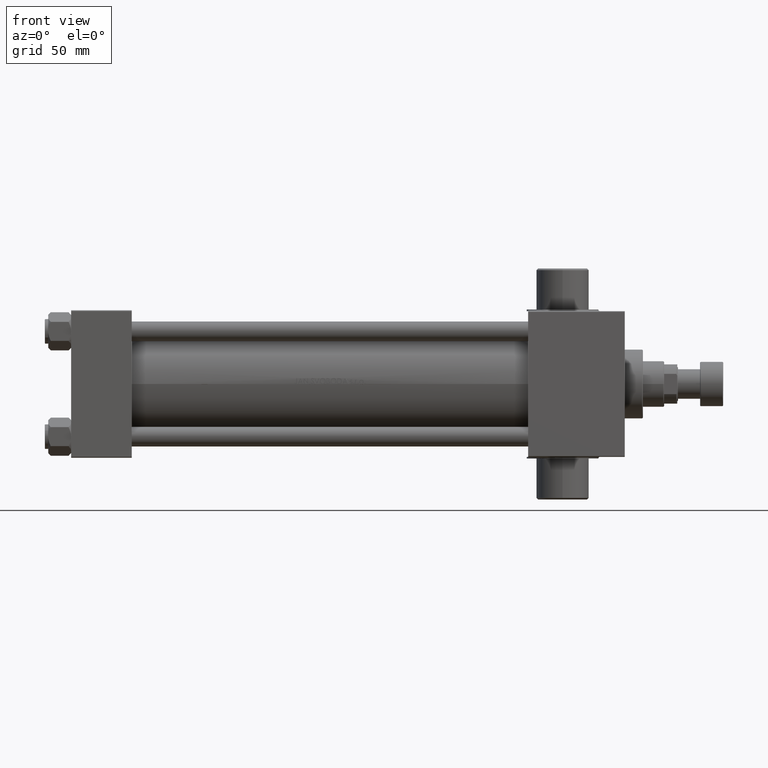
[diagram: clean part render]
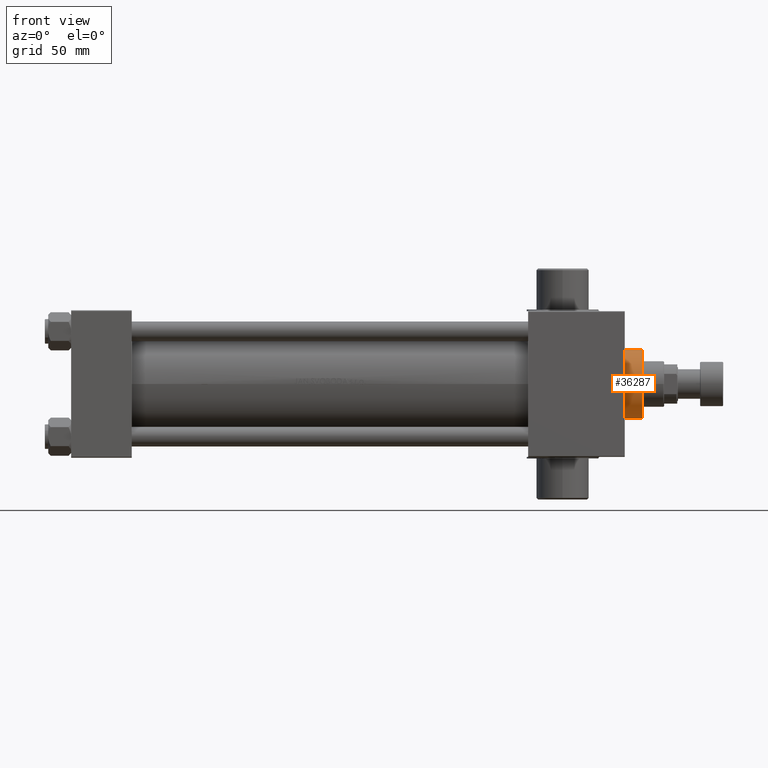
[diagram: same view with one face highlighted and labeled with its STEP entity id]
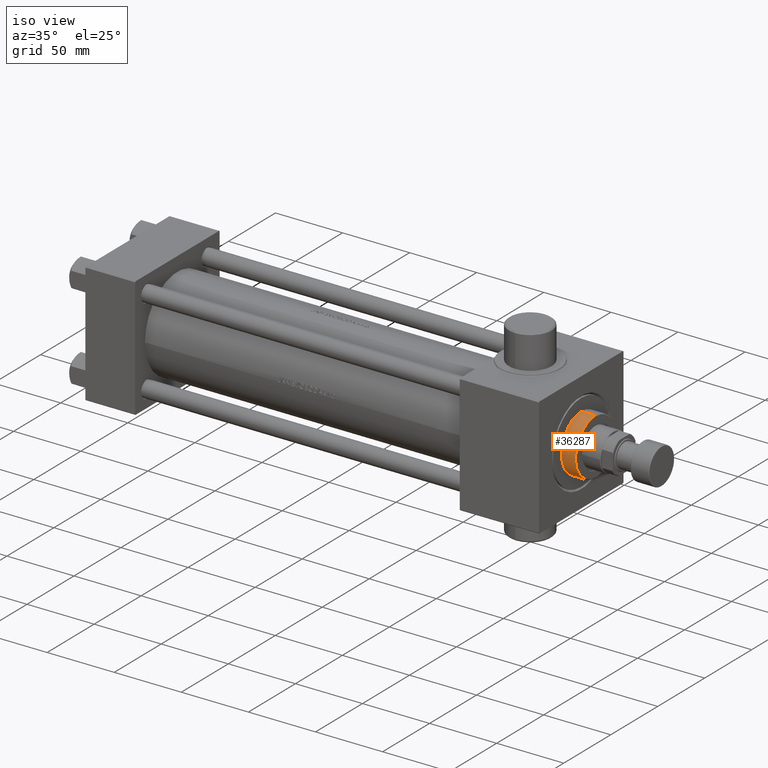
[diagram: same view with one face highlighted and labeled with its STEP entity id]
A machine part, front view. The second image highlights one B-rep face of the part: STEP entity #36287.
A second angle (iso view) of the same face is appended — the face is thin or edge-on in the first view.
In plain terms, the highlighted cylindrical surface (edge-blend (fillet) strip) has radius 21 mm, axis along (-1, -0, 0).
Its self-contained STEP definition (entity closure, byte-faithful):
#2913 = DIRECTION ( 'NONE',  ( -0.000000000000000000, -0.000000000000000000, -1.000000000000000000 ) ) ;
#3917 = CARTESIAN_POINT ( 'NONE',  ( 21.00000000000000000, 2.571758278209441661E-15, 26.69999999999999929 ) ) ;
#5870 = EDGE_LOOP ( 'NONE', ( #38869, #22205, #39813, #30609 ) ) ;
#6151 = CARTESIAN_POINT ( 'NONE',  ( -21.00000000000000000, 0.000000000000000000, 26.69999999999999929 ) ) ;
#6679 = DIRECTION ( 'NONE',  ( 1.000000000000000000, 0.000000000000000000, 0.000000000000000000 ) ) ;
#10133 = AXIS2_PLACEMENT_3D ( 'NONE', #35517, #2913, #24822 ) ;
#12662 = DIRECTION ( 'NONE',  ( -0.000000000000000000, -0.000000000000000000, -1.000000000000000000 ) ) ;
#12890 = DIRECTION ( 'NONE',  ( 0.000000000000000000, 0.000000000000000000, -1.000000000000000000 ) ) ;
#14317 = FACE_OUTER_BOUND ( 'NONE', #5870, .T. ) ;
#14520 = VERTEX_POINT ( 'NONE', #24759 ) ;
#16805 = DIRECTION ( 'NONE',  ( 1.000000000000000000, 0.000000000000000000, 0.000000000000000000 ) ) ;
#18863 = VECTOR ( 'NONE', #12662, 1000.000000000000000 ) ;
#18970 = DIRECTION ( 'NONE',  ( 0.000000000000000000, 0.000000000000000000, 1.000000000000000000 ) ) ;
#19936 = CARTESIAN_POINT ( 'NONE',  ( -21.00000000000000000, 0.000000000000000000, 37.19999999999999574 ) ) ;
#21695 = VECTOR ( 'NONE', #38401, 1000.000000000000000 ) ;
#22205 = ORIENTED_EDGE ( 'NONE', *, *, #33992, .T. ) ;
#23905 = CARTESIAN_POINT ( 'NONE',  ( -21.00000000000000000, 0.000000000000000000, 37.69999999999999574 ) ) ;
#24491 = CIRCLE ( 'NONE', #28296, 21.00000000000000000 ) ;
#24759 = CARTESIAN_POINT ( 'NONE',  ( 21.00000000000000000, 2.571758278209441661E-15, 37.19999999999999574 ) ) ;
#24822 = DIRECTION ( 'NONE',  ( -1.000000000000000000, 0.000000000000000000, 0.000000000000000000 ) ) ;
#24842 = VERTEX_POINT ( 'NONE', #19936 ) ;
#25798 = VERTEX_POINT ( 'NONE', #3917 ) ;
#26246 = EDGE_CURVE ( 'NONE', #14520, #25798, #31222, .T. ) ;
#28296 = AXIS2_PLACEMENT_3D ( 'NONE', #45462, #12890, #6679 ) ;
#30107 = EDGE_CURVE ( 'NONE', #42241, #25798, #35689, .T. ) ;
#30609 = ORIENTED_EDGE ( 'NONE', *, *, #30107, .T. ) ;
#31222 = LINE ( 'NONE', #45473, #18863 ) ;
#33992 = EDGE_CURVE ( 'NONE', #14520, #24842, #24491, .T. ) ;
#35517 = CARTESIAN_POINT ( 'NONE',  ( 0.000000000000000000, 0.000000000000000000, 37.69999999999999574 ) ) ;
#35689 = CIRCLE ( 'NONE', #37209, 21.00000000000000000 ) ;
#36201 = CYLINDRICAL_SURFACE ( 'NONE', #10133, 21.00000000000000000 ) ;
#36287 = ADVANCED_FACE ( 'NONE', ( #14317 ), #36201, .T. ) ;
#37024 = CARTESIAN_POINT ( 'NONE',  ( 0.000000000000000000, 0.000000000000000000, 26.69999999999999929 ) ) ;
#37209 = AXIS2_PLACEMENT_3D ( 'NONE', #37024, #18970, #16805 ) ;
#38401 = DIRECTION ( 'NONE',  ( -0.000000000000000000, -0.000000000000000000, -1.000000000000000000 ) ) ;
#38869 = ORIENTED_EDGE ( 'NONE', *, *, #26246, .F. ) ;
#39813 = ORIENTED_EDGE ( 'NONE', *, *, #46534, .T. ) ;
#41737 = LINE ( 'NONE', #23905, #21695 ) ;
#42241 = VERTEX_POINT ( 'NONE', #6151 ) ;
#45462 = CARTESIAN_POINT ( 'NONE',  ( 0.000000000000000000, 0.000000000000000000, 37.19999999999999574 ) ) ;
#45473 = CARTESIAN_POINT ( 'NONE',  ( 21.00000000000000000, 2.571758278209441661E-15, 37.69999999999999574 ) ) ;
#46534 = EDGE_CURVE ( 'NONE', #24842, #42241, #41737, .T. ) ;